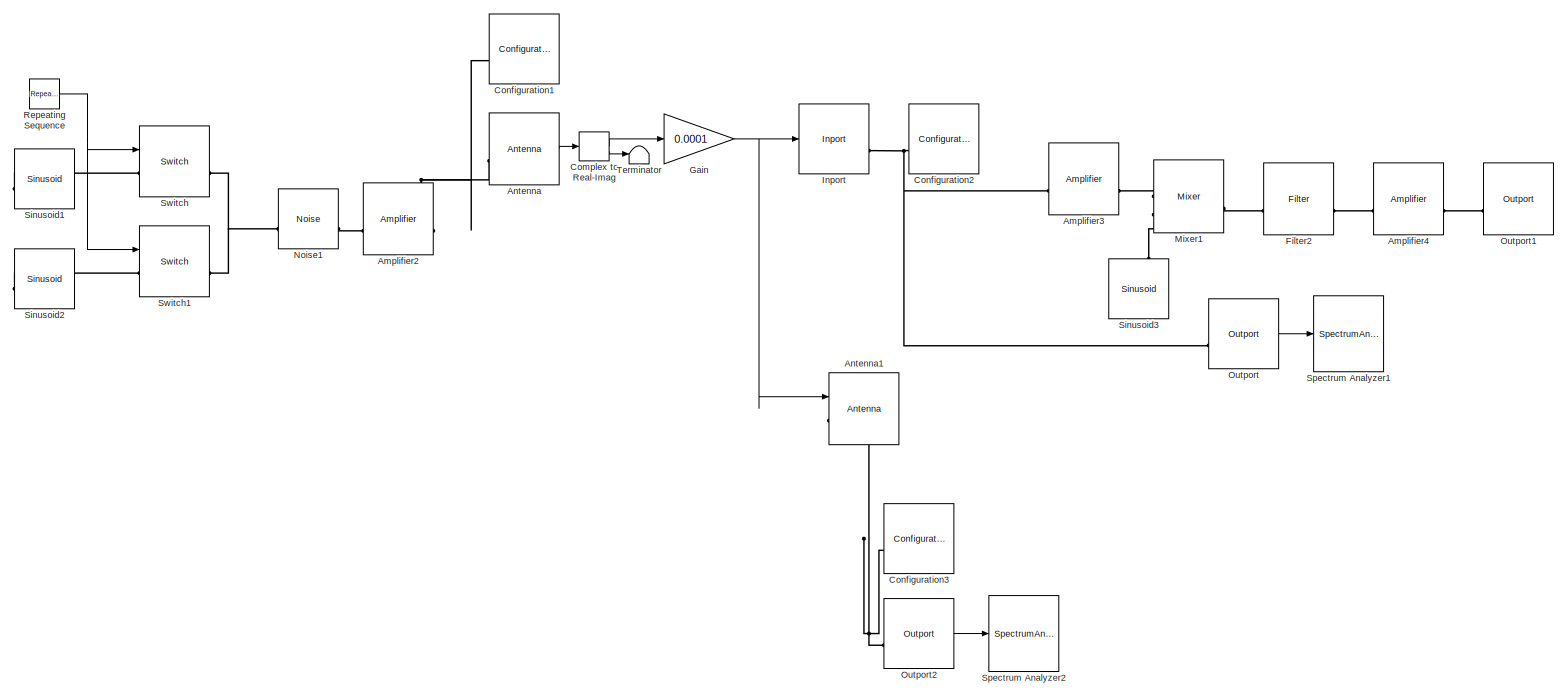
[diagram: root canvas - part 1/1, most of the canvas]
MODEL slx_daa9125906a4
KIND model
CONFIG AbsTol = auto
CONFIG EnableMultiTasking = off
CONFIG FixedStep = auto
CONFIG MaxStep = auto
CONFIG MinStep = auto
CONFIG RelTol = 1e-3
CONFIG SampleTimeConstraint = Unconstrained
CONFIG SolverName = VariableStepAuto
CONFIG StartTime = 0.0
CONFIG StopTime = 0.05
BLOCK [Reference] Amplifier2  REF=simrfV2elements/Amplifier
  SourceBlock = simrfV2elements/Amplifier
  SourceType = Amplifier
  UserDataPersistent = on
BLOCK [Reference] Amplifier3  REF=simrfV2elements/Amplifier
  Commented = on
  SourceBlock = simrfV2elements/Amplifier
  SourceType = Amplifier
  UserDataPersistent = on
BLOCK [Reference] Amplifier4  REF=simrfV2elements/Amplifier
  Commented = on
  SourceBlock = simrfV2elements/Amplifier
  SourceType = Amplifier
  UserDataPersistent = on
BLOCK [Reference] Antenna  REF=simrfV2elements/Antenna
  SourceBlock = simrfV2elements/Antenna
  SourceType = Antenna
  UserDataPersistent = on
BLOCK [Reference] Antenna1  REF=simrfV2elements/Antenna
  SourceBlock = simrfV2elements/Antenna
  SourceType = Antenna
  UserDataPersistent = on
BLOCK [ComplexToRealImag] Complex to Real-Imag
BLOCK [Reference] Configuration1  REF=simrfV2util1/Configuration
  SourceBlock = simrfV2util1/Configuration
  SourceType = Configuration
BLOCK [Reference] Configuration2  REF=simrfV2util1/Configuration
  SourceBlock = simrfV2util1/Configuration
  SourceType = Configuration
BLOCK [Reference] Configuration3  REF=simrfV2util1/Configuration
  SourceBlock = simrfV2util1/Configuration
  SourceType = Configuration
BLOCK [Reference] Filter2  REF=simrfV2elements/Filter
  Commented = on
  SourceBlock = simrfV2elements/Filter
  SourceType = Filter
  UserDataPersistent = on
BLOCK [Gain] Gain
  Gain = 0.0001
BLOCK [Reference] Inport  REF=simrfV2util1/Inport
  SourceBlock = simrfV2util1/Inport
  SourceType = Inport
BLOCK [Reference] Mixer1  REF=simrfV2elements/Mixer
  Commented = on
  SourceBlock = simrfV2elements/Mixer
  SourceType = Mixer
BLOCK [Reference] Noise1  REF=simrfV2sources1/Noise
  SourceBlock = simrfV2sources1/Noise
  SourceType = Noise Source
BLOCK [Reference] Outport  REF=simrfV2util1/Outport
  SourceBlock = simrfV2util1/Outport
  SourceType = Outport
BLOCK [Reference] Outport1  REF=simrfV2util1/Outport
  Commented = on
  SourceBlock = simrfV2util1/Outport
  SourceType = Outport
BLOCK [Reference] Outport2  REF=simrfV2util1/Outport
  SourceBlock = simrfV2util1/Outport
  SourceType = Outport
BLOCK [Reference] Repeating Sequence  REF=simulink/Sources/Repeating
Sequence
  SourceBlock = simulink/Sources/Repeating\nSequence
  SourceType = Repeating table
BLOCK [Reference] Sinusoid1  REF=simrfV2sources1/Sinusoid
  SourceBlock = simrfV2sources1/Sinusoid
  SourceType = Sinusoidal Source
BLOCK [Reference] Sinusoid2  REF=simrfV2sources1/Sinusoid
  SourceBlock = simrfV2sources1/Sinusoid
  SourceType = Sinusoidal Source
BLOCK [Reference] Sinusoid3  REF=simrfV2sources1/Sinusoid
  Commented = on
  NameLocation = right
  SourceBlock = simrfV2sources1/Sinusoid
  SourceType = Sinusoidal Source
BLOCK [SpectrumAnalyzer] Spectrum Analyzer1
  ScopeSpecificationString = spbscopes.SpectrumAnalyzerBlockCfg('CurrentConfiguration', extmgr.ConfigurationSet(extmgr.Configuration('Core','General UI',true),extmgr.Configuration('Core','Source UI',true),extmgr.Configuration('Sources','WiredSimulink',true),extmgr.Configuration('Visuals','Spectrum',true,'AxesProperties',struct('Color',{[0 0 0],[0 0 0]},'XColor',{[0.686274509803922 0.686274509803922 0.686274509803922],[0.68627...<+2083ch>
  Tag = simrfV2util1/Spectrum\nAnalyzer
BLOCK [SpectrumAnalyzer] Spectrum Analyzer2
  ScopeSpecificationString = spbscopes.SpectrumAnalyzerBlockCfg('CurrentConfiguration', extmgr.ConfigurationSet(extmgr.Configuration('Core','General UI',true),extmgr.Configuration('Core','Source UI',true),extmgr.Configuration('Sources','WiredSimulink',true),extmgr.Configuration('Visuals','Spectrum',true,'AxesProperties',struct('Color',{[0 0 0],[0 0 0]},'XColor',{[0.686274509803922 0.686274509803922 0.686274509803922],[0.68627...<+2085ch>
  Tag = simrfV2util1/Spectrum\nAnalyzer
BLOCK [Reference] Switch  REF=simrfV2junction1/Switch
  SourceBlock = simrfV2junction1/Switch
  SourceType = Switch Two Terminal
BLOCK [Reference] Switch1  REF=simrfV2junction1/Switch
  SourceBlock = simrfV2junction1/Switch
  SourceType = Switch Two Terminal
BLOCK [Terminator] Terminator
LINE Antenna:1 -> Complex to Real-Imag:1
LINE Complex to Real-Imag:1 -> Gain:1
LINE Complex to Real-Imag:2 -> Terminator:1
NET Gain:1 -> Antenna1:1, Inport:1
LINE Outport2:1 -> Spectrum Analyzer2:1
LINE Outport:1 -> Spectrum Analyzer1:1
NET Repeating Sequence:1 -> Switch1:1, Switch:1
PLINE Amplifier2:LConn1 -- Noise1:LConn1
PNET net1: Amplifier2:RConn1 -- Antenna:LConn1 -- Configuration1:LConn1
PNET net2: Amplifier3:LConn1 -- Configuration2:LConn1 -- Inport:RConn1 -- Outport:LConn1
PLINE Amplifier3:RConn1 -- Mixer1:LConn1
PLINE Amplifier4:LConn1 -- Filter2:RConn1
PLINE Amplifier4:RConn1 -- Outport1:LConn1
PNET net3: Antenna1:LConn1 -- Configuration3:LConn1 -- Outport2:LConn1
PLINE Filter2:LConn1 -- Mixer1:RConn1
PLINE Mixer1:LConn2 -- Sinusoid3:LConn1
PNET net4: Noise1:RConn1 -- Switch1:RConn1 -- Switch:RConn1
PLINE Sinusoid1:LConn1 -- Switch:LConn1
PLINE Sinusoid2:LConn1 -- Switch1:LConn1
note: NET lines group one-source signal fan-out (src -> all destinations, sorted); 1:1 wires keep LINE; PNET lines group multi-terminal physical nets as a canonical sorted terminal list (undirected conserving connections); 2-terminal nets keep the pairwise PLINE form
